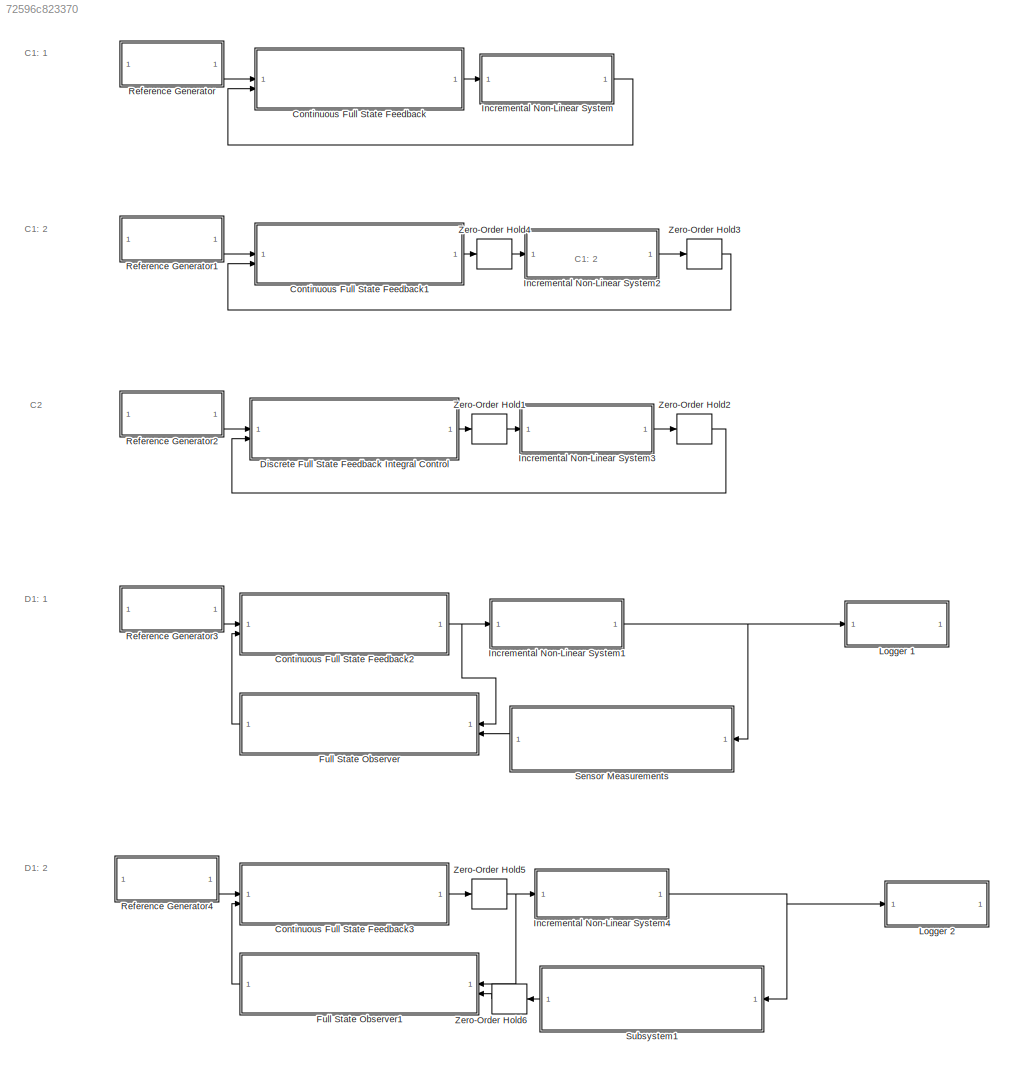
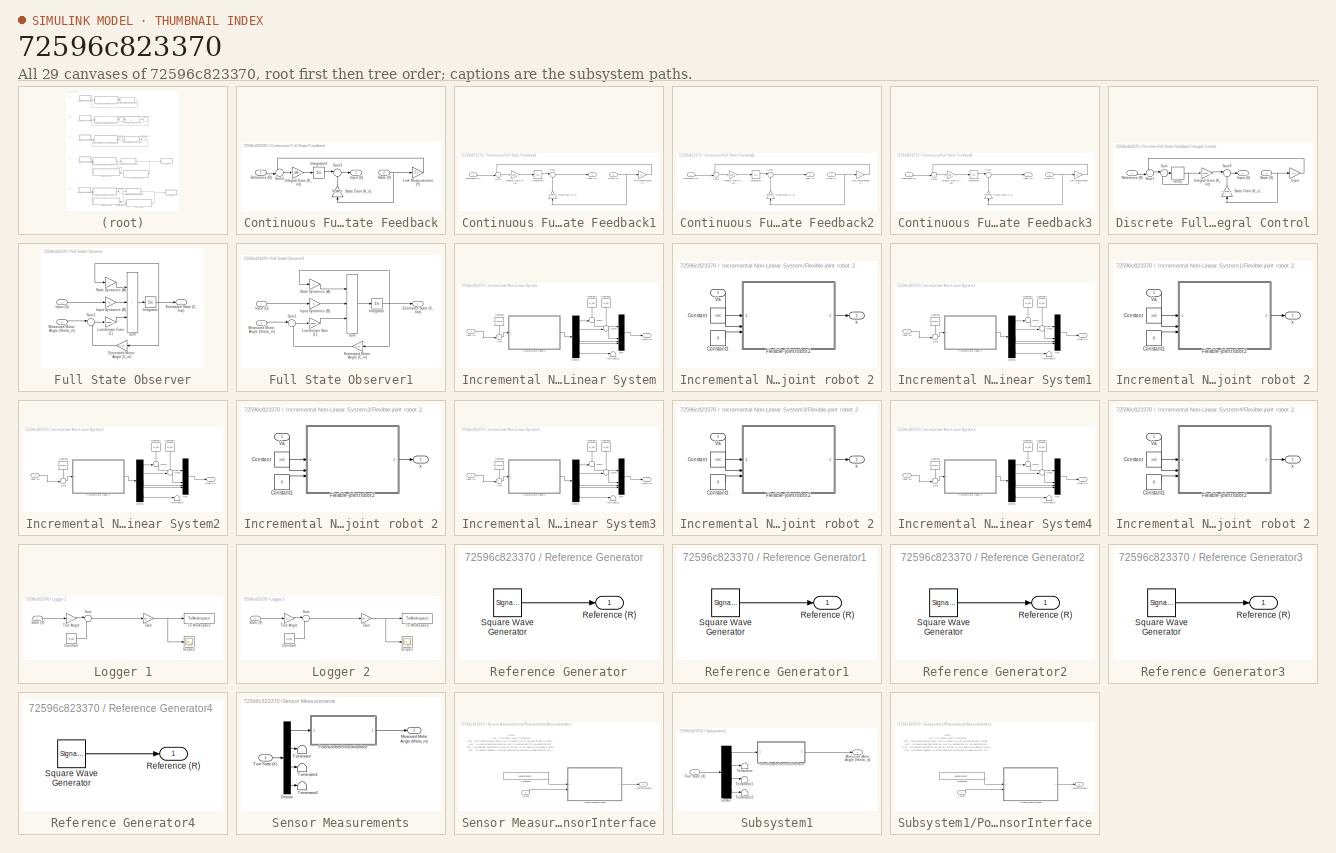
[diagram: thumbnail index - all 29 canvases of the model, root first then tree order]
MODEL slx_72596c823370
KIND model
CONFIG AbsTol = auto
CONFIG EnableMultiTasking = off
CONFIG FixedStep = auto
CONFIG MaxStep = auto
CONFIG MinStep = auto
CONFIG RelTol = 1e-3
CONFIG SampleTimeConstraint = Unconstrained
CONFIG SolverName = VariableStepAuto
CONFIG StartTime = 0.0
CONFIG StopTime = 21
BLOCK [SubSystem] Continuous Full State Feedback
BLOCK [Outport] Continuous Full State Feedback/Input (U)
BLOCK [Gain] Continuous Full State Feedback/Integral Gain (K_int)
  Gain = K_cont_int
BLOCK [Integrator] Continuous Full State Feedback/Integrator3
BLOCK [Gain] Continuous Full State Feedback/Link Measurement (Y)
  Gain = C_l
  Multiplication = Matrix(K*u)
BLOCK [Inport] Continuous Full State Feedback/Reference (R)
BLOCK [Inport] Continuous Full State Feedback/State (X)
  Port = 2
BLOCK [Gain] Continuous Full State Feedback/State Gain (K_x)
  Gain = K_cont_x
  Multiplication = Matrix(K*u)
  NameLocation = right
BLOCK [Sum] Continuous Full State Feedback/Sum2
  Inputs = -+|
BLOCK [Sum] Continuous Full State Feedback/Sum3
  Inputs = |+-
BLOCK [SubSystem] Continuous Full State Feedback1
BLOCK [Outport] Continuous Full State Feedback1/Input (U)
BLOCK [Gain] Continuous Full State Feedback1/Integral Gain (K_int)
  Gain = K_cont_int
BLOCK [Integrator] Continuous Full State Feedback1/Integrator3
BLOCK [Gain] Continuous Full State Feedback1/Link Measurement (Y)
  Gain = C_l
  Multiplication = Matrix(K*u)
BLOCK [Inport] Continuous Full State Feedback1/Reference (R)
BLOCK [Inport] Continuous Full State Feedback1/State (X)
  Port = 2
BLOCK [Gain] Continuous Full State Feedback1/State Gain (K_x)
  Gain = K_cont_x
  Multiplication = Matrix(K*u)
  NameLocation = right
BLOCK [Sum] Continuous Full State Feedback1/Sum2
  Inputs = -+|
BLOCK [Sum] Continuous Full State Feedback1/Sum3
  Inputs = |+-
BLOCK [SubSystem] Continuous Full State Feedback2
BLOCK [Outport] Continuous Full State Feedback2/Input (U)
BLOCK [Gain] Continuous Full State Feedback2/Integral Gain (K_int)
  Gain = K_cont_int
BLOCK [Integrator] Continuous Full State Feedback2/Integrator3
BLOCK [Gain] Continuous Full State Feedback2/Link Measurement (Y)
  Gain = C_l
  Multiplication = Matrix(K*u)
BLOCK [Inport] Continuous Full State Feedback2/Reference (R)
BLOCK [Inport] Continuous Full State Feedback2/State (X)
  Port = 2
BLOCK [Gain] Continuous Full State Feedback2/State Gain (K_x)
  Gain = K_cont_x
  Multiplication = Matrix(K*u)
  NameLocation = right
BLOCK [Sum] Continuous Full State Feedback2/Sum2
  Inputs = -+|
BLOCK [Sum] Continuous Full State Feedback2/Sum3
  Inputs = |+-
BLOCK [SubSystem] Continuous Full State Feedback3
BLOCK [Outport] Continuous Full State Feedback3/Input (U)
BLOCK [Gain] Continuous Full State Feedback3/Integral Gain (K_int)
  Gain = K_cont_int
BLOCK [Integrator] Continuous Full State Feedback3/Integrator3
BLOCK [Gain] Continuous Full State Feedback3/Link Measurement (Y)
  Gain = C_l
  Multiplication = Matrix(K*u)
BLOCK [Inport] Continuous Full State Feedback3/Reference (R)
BLOCK [Inport] Continuous Full State Feedback3/State (X)
  Port = 2
BLOCK [Gain] Continuous Full State Feedback3/State Gain (K_x)
  Gain = K_cont_x
  Multiplication = Matrix(K*u)
  NameLocation = right
BLOCK [Sum] Continuous Full State Feedback3/Sum2
  Inputs = -+|
BLOCK [Sum] Continuous Full State Feedback3/Sum3
  Inputs = |+-
BLOCK [SubSystem] Discrete Full State Feedback Integral Control
BLOCK [Delay] Discrete Full State Feedback Integral Control/Delay
  DelayLength = 1
  InputPortMap = u0
  SampleTime = min_sampling_time
BLOCK [Gain] Discrete Full State Feedback Integral Control/Gain
  Gain = C_l
  Multiplication = Matrix(K*u)
BLOCK [Outport] Discrete Full State Feedback Integral Control/Input (U)
BLOCK [Gain] Discrete Full State Feedback Integral Control/Integral Gain (K_int)
  Gain = K_disc_int
BLOCK [Inport] Discrete Full State Feedback Integral Control/Reference (R)
BLOCK [Inport] Discrete Full State Feedback Integral Control/State (X)
  Port = 2
BLOCK [Gain] Discrete Full State Feedback Integral Control/State Gain (K_x)
  Gain = K_disc_x
  Multiplication = Matrix(K*u)
  NameLocation = right
BLOCK [Sum] Discrete Full State Feedback Integral Control/Sum
  Inputs = |++
BLOCK [Sum] Discrete Full State Feedback Integral Control/Sum7
  Inputs = -+|
BLOCK [Sum] Discrete Full State Feedback Integral Control/Sum9
  Inputs = |+-
BLOCK [SubSystem] Full State Observer
  NameLocation = top
BLOCK [Gain] Full State Observer/Estimated Motor Angle (C_m)
  Gain = C_m
  Multiplication = Matrix(K*u)
  NameLocation = top
BLOCK [Outport] Full State Observer/Estimated State (X_hat)
BLOCK [Inport] Full State Observer/Input (U)
BLOCK [Gain] Full State Observer/Input Dynamics (B)
  Gain = B
  Multiplication = Matrix(K*u)
BLOCK [Integrator] Full State Observer/Integrator
BLOCK [Gain] Full State Observer/Luenberger Gain (L)
  Gain = J_observer
  Multiplication = Matrix(K*u)
BLOCK [Inport] Full State Observer/Measured Motor Angle (\theta_m)
  Port = 2
BLOCK [Gain] Full State Observer/State Dynamics (A)
  Gain = A
  Multiplication = Matrix(K*u)
BLOCK [Sum] Full State Observer/Sum
  IconShape = rectangular
  Inputs = +++
BLOCK [Sum] Full State Observer/Sum1
  Inputs = |+-
BLOCK [SubSystem] Full State Observer1
  NameLocation = top
BLOCK [Gain] Full State Observer1/Estimated Motor Angle (C_m)
  Gain = C_m
  Multiplication = Matrix(K*u)
  NameLocation = top
BLOCK [Outport] Full State Observer1/Estimated State (X_hat)
BLOCK [Inport] Full State Observer1/Input (U)
BLOCK [Gain] Full State Observer1/Input Dynamics (B)
  Gain = B
  Multiplication = Matrix(K*u)
BLOCK [Integrator] Full State Observer1/Integrator
BLOCK [Gain] Full State Observer1/Luenberger Gain (L)
  Gain = J_observer
  Multiplication = Matrix(K*u)
BLOCK [Inport] Full State Observer1/Measured Motor Angle (\theta_m)
  Port = 2
BLOCK [Gain] Full State Observer1/State Dynamics (A)
  Gain = A
  Multiplication = Matrix(K*u)
BLOCK [Sum] Full State Observer1/Sum
  IconShape = rectangular
  Inputs = +++
BLOCK [Sum] Full State Observer1/Sum1
  Inputs = |+-
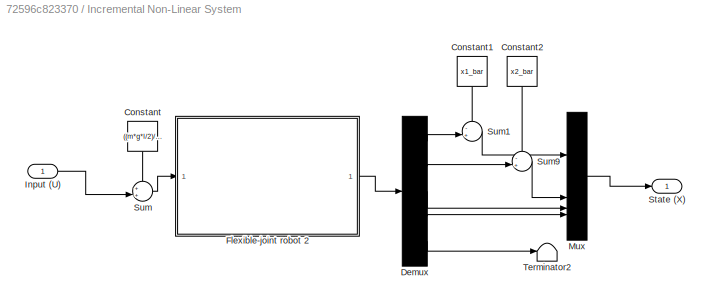
BLOCK [SubSystem] Incremental Non-Linear System
BLOCK [Constant] Incremental Non-Linear System/Constant
  NameLocation = left
  Value = ((m*g*l/2)/K_m + I_noload)*R
BLOCK [Constant] Incremental Non-Linear System/Constant1
  NameLocation = left
  Value = x1_bar
BLOCK [Constant] Incremental Non-Linear System/Constant2
  NameLocation = left
  Value = x2_bar
BLOCK [Demux] Incremental Non-Linear System/Demux
  Outputs = 5
BLOCK [SubSystem] Incremental Non-Linear System/Flexible-joint robot 2
BLOCK [Constant] Incremental Non-Linear System/Flexible-joint robot 2/Constant
  Value = init
BLOCK [Constant] Incremental Non-Linear System/Flexible-joint robot 2/Constant1
  Value = 0
BLOCK [ModelReference] Incremental Non-Linear System/Flexible-joint robot 2/Flexible-joint robot 2
  CopyOfModelProtected = on
  ModelNameDialog = Flexible_joint_robot_2
  ModelReferenceVersion = 1.65
BLOCK [Inport] Incremental Non-Linear System/Flexible-joint robot 2/Va
BLOCK [Outport] Incremental Non-Linear System/Flexible-joint robot 2/x
BLOCK [Inport] Incremental Non-Linear System/Input (U)
BLOCK [Mux] Incremental Non-Linear System/Mux
  DisplayOption = bar
BLOCK [Outport] Incremental Non-Linear System/State (X)
BLOCK [Sum] Incremental Non-Linear System/Sum
  Inputs = ++|
BLOCK [Sum] Incremental Non-Linear System/Sum1
  Inputs = -+|
BLOCK [Sum] Incremental Non-Linear System/Sum9
  Inputs = -+|
BLOCK [Terminator] Incremental Non-Linear System/Terminator2
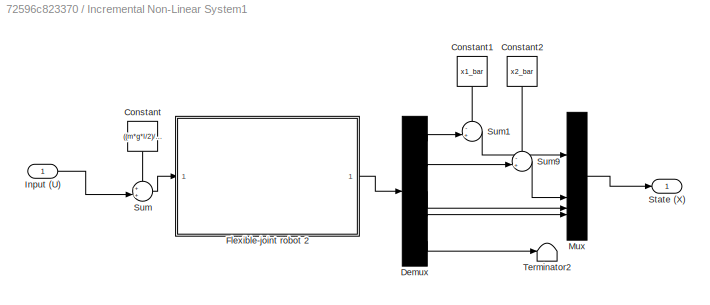
BLOCK [SubSystem] Incremental Non-Linear System1
BLOCK [Constant] Incremental Non-Linear System1/Constant
  NameLocation = left
  Value = ((m*g*l/2)/K_m + I_noload)*R
BLOCK [Constant] Incremental Non-Linear System1/Constant1
  NameLocation = left
  Value = x1_bar
BLOCK [Constant] Incremental Non-Linear System1/Constant2
  NameLocation = left
  Value = x2_bar
BLOCK [Demux] Incremental Non-Linear System1/Demux
  Outputs = 5
BLOCK [SubSystem] Incremental Non-Linear System1/Flexible-joint robot 2
BLOCK [Constant] Incremental Non-Linear System1/Flexible-joint robot 2/Constant
  Value = init
BLOCK [Constant] Incremental Non-Linear System1/Flexible-joint robot 2/Constant1
  Value = 0
BLOCK [ModelReference] Incremental Non-Linear System1/Flexible-joint robot 2/Flexible-joint robot 2
  CopyOfModelProtected = on
  ModelNameDialog = Flexible_joint_robot_2
  ModelReferenceVersion = 1.65
BLOCK [Inport] Incremental Non-Linear System1/Flexible-joint robot 2/Va
BLOCK [Outport] Incremental Non-Linear System1/Flexible-joint robot 2/x
BLOCK [Inport] Incremental Non-Linear System1/Input (U)
BLOCK [Mux] Incremental Non-Linear System1/Mux
  DisplayOption = bar
BLOCK [Outport] Incremental Non-Linear System1/State (X)
BLOCK [Sum] Incremental Non-Linear System1/Sum
  Inputs = ++|
BLOCK [Sum] Incremental Non-Linear System1/Sum1
  Inputs = -+|
BLOCK [Sum] Incremental Non-Linear System1/Sum9
  Inputs = -+|
BLOCK [Terminator] Incremental Non-Linear System1/Terminator2
BLOCK [SubSystem] Incremental Non-Linear System2
BLOCK [Constant] Incremental Non-Linear System2/Constant
  NameLocation = left
  Value = ((m*g*l/2)/K_m + I_noload)*R
BLOCK [Constant] Incremental Non-Linear System2/Constant1
  NameLocation = left
  Value = x1_bar
BLOCK [Constant] Incremental Non-Linear System2/Constant2
  NameLocation = left
  Value = x2_bar
BLOCK [Demux] Incremental Non-Linear System2/Demux
  Outputs = 5
BLOCK [SubSystem] Incremental Non-Linear System2/Flexible-joint robot 2
BLOCK [Constant] Incremental Non-Linear System2/Flexible-joint robot 2/Constant
  Value = init
BLOCK [Constant] Incremental Non-Linear System2/Flexible-joint robot 2/Constant1
  Value = 0
BLOCK [ModelReference] Incremental Non-Linear System2/Flexible-joint robot 2/Flexible-joint robot 2
  CopyOfModelProtected = on
  ModelNameDialog = Flexible_joint_robot_2
  ModelReferenceVersion = 1.65
BLOCK [Inport] Incremental Non-Linear System2/Flexible-joint robot 2/Va
BLOCK [Outport] Incremental Non-Linear System2/Flexible-joint robot 2/x
BLOCK [Inport] Incremental Non-Linear System2/Input (U)
BLOCK [Mux] Incremental Non-Linear System2/Mux
  DisplayOption = bar
BLOCK [Outport] Incremental Non-Linear System2/State (X)
BLOCK [Sum] Incremental Non-Linear System2/Sum
  Inputs = ++|
BLOCK [Sum] Incremental Non-Linear System2/Sum1
  Inputs = -+|
BLOCK [Sum] Incremental Non-Linear System2/Sum9
  Inputs = -+|
BLOCK [Terminator] Incremental Non-Linear System2/Terminator2
BLOCK [SubSystem] Incremental Non-Linear System3
BLOCK [Constant] Incremental Non-Linear System3/Constant
  NameLocation = left
  Value = ((m*g*l/2)/K_m + I_noload)*R
BLOCK [Constant] Incremental Non-Linear System3/Constant1
  NameLocation = left
  Value = x1_bar
BLOCK [Constant] Incremental Non-Linear System3/Constant2
  NameLocation = left
  Value = x2_bar
BLOCK [Demux] Incremental Non-Linear System3/Demux
  Outputs = 5
BLOCK [SubSystem] Incremental Non-Linear System3/Flexible-joint robot 2
BLOCK [Constant] Incremental Non-Linear System3/Flexible-joint robot 2/Constant
  Value = init
BLOCK [Constant] Incremental Non-Linear System3/Flexible-joint robot 2/Constant1
  Value = 0
BLOCK [ModelReference] Incremental Non-Linear System3/Flexible-joint robot 2/Flexible-joint robot 2
  CopyOfModelProtected = on
  ModelNameDialog = Flexible_joint_robot_2
  ModelReferenceVersion = 1.65
BLOCK [Inport] Incremental Non-Linear System3/Flexible-joint robot 2/Va
BLOCK [Outport] Incremental Non-Linear System3/Flexible-joint robot 2/x
BLOCK [Inport] Incremental Non-Linear System3/Input (U)
BLOCK [Mux] Incremental Non-Linear System3/Mux
  DisplayOption = bar
BLOCK [Outport] Incremental Non-Linear System3/State (X)
BLOCK [Sum] Incremental Non-Linear System3/Sum
  Inputs = ++|
BLOCK [Sum] Incremental Non-Linear System3/Sum1
  Inputs = -+|
BLOCK [Sum] Incremental Non-Linear System3/Sum9
  Inputs = -+|
BLOCK [Terminator] Incremental Non-Linear System3/Terminator2
BLOCK [SubSystem] Incremental Non-Linear System4
BLOCK [Constant] Incremental Non-Linear System4/Constant
  NameLocation = left
  Value = ((m*g*l/2)/K_m + I_noload)*R
BLOCK [Constant] Incremental Non-Linear System4/Constant1
  NameLocation = left
  Value = x1_bar
BLOCK [Constant] Incremental Non-Linear System4/Constant2
  NameLocation = left
  Value = x2_bar
BLOCK [Demux] Incremental Non-Linear System4/Demux
  Outputs = 5
BLOCK [SubSystem] Incremental Non-Linear System4/Flexible-joint robot 2
BLOCK [Constant] Incremental Non-Linear System4/Flexible-joint robot 2/Constant
  Value = init
BLOCK [Constant] Incremental Non-Linear System4/Flexible-joint robot 2/Constant1
  Value = 0
BLOCK [ModelReference] Incremental Non-Linear System4/Flexible-joint robot 2/Flexible-joint robot 2
  CopyOfModelProtected = on
  ModelNameDialog = Flexible_joint_robot_2
  ModelReferenceVersion = 1.65
BLOCK [Inport] Incremental Non-Linear System4/Flexible-joint robot 2/Va
BLOCK [Outport] Incremental Non-Linear System4/Flexible-joint robot 2/x
BLOCK [Inport] Incremental Non-Linear System4/Input (U)
BLOCK [Mux] Incremental Non-Linear System4/Mux
  DisplayOption = bar
BLOCK [Outport] Incremental Non-Linear System4/State (X)
BLOCK [Sum] Incremental Non-Linear System4/Sum
  Inputs = ++|
BLOCK [Sum] Incremental Non-Linear System4/Sum1
  Inputs = -+|
BLOCK [Sum] Incremental Non-Linear System4/Sum9
  Inputs = -+|
BLOCK [Terminator] Incremental Non-Linear System4/Terminator2
BLOCK [SubSystem] Logger 1
BLOCK [Constant] Logger 1/Constant
  Value = x2_bar
BLOCK [Gain] Logger 1/Gain
  Gain = 180 / pi
BLOCK [Scope] Logger 1/Scope2
  Floating = off
  NumInputPorts = 1
  ScopeSpecificationString = Simulink.scopes.TimeScopeBlockCfg('CurrentConfiguration', extmgr.ConfigurationSet(extmgr.Configuration('Core','General UI',true),extmgr.Configuration('Core','Source UI',true),extmgr.Configuration('Sources','WiredSimulink',true,'DataLoggingVariableName','ScopeData5'),extmgr.Configuration('Visuals','Time Domain',true,'SerializedDisplays',{struct('MinYLimReal','4.07075','MaxYLimReal','56.47558','YLab...<+1691ch>
BLOCK [Inport] Logger 1/State (X)
BLOCK [Sum] Logger 1/Sum
  Inputs = |++
BLOCK [ToWorkspace] Logger 1/To Workspace
  FixptAsFi = on
  MaxDataPoints = inf
  SampleTime = -1
  SaveFormat = Timeseries
  VariableName = link_angle
BLOCK [Gain] Logger 1/True Angle
  Gain = C_l
  Multiplication = Matrix(K*u)
BLOCK [SubSystem] Logger 2
BLOCK [Constant] Logger 2/Constant
  Value = x2_bar
BLOCK [Gain] Logger 2/Gain
  Gain = 180 / pi
BLOCK [Scope] Logger 2/Scope2
  Floating = off
  NumInputPorts = 1
  ScopeSpecificationString = Simulink.scopes.TimeScopeBlockCfg('CurrentConfiguration', extmgr.ConfigurationSet(extmgr.Configuration('Core','General UI',true),extmgr.Configuration('Core','Source UI',true),extmgr.Configuration('Sources','WiredSimulink',true,'DataLoggingVariableName','ScopeData5'),extmgr.Configuration('Visuals','Time Domain',true,'SerializedDisplays',{struct('MinYLimReal','4.07075','MaxYLimReal','56.47558','YLab...<+1691ch>
BLOCK [Inport] Logger 2/State (X)
BLOCK [Sum] Logger 2/Sum
  Inputs = |++
BLOCK [ToWorkspace] Logger 2/To Workspace
  FixptAsFi = on
  MaxDataPoints = inf
  SampleTime = -1
  SaveFormat = Timeseries
  VariableName = link_angle_2
BLOCK [Gain] Logger 2/True Angle
  Gain = C_l
  Multiplication = Matrix(K*u)
BLOCK [SubSystem] Reference Generator
BLOCK [Outport] Reference Generator/Reference (R)
BLOCK [SignalGenerator] Reference Generator/Square Wave Generator
  Amplitude = wave_amplitude
  Frequency = 1 / wave_period
  WaveForm = square
BLOCK [SubSystem] Reference Generator1
BLOCK [Outport] Reference Generator1/Reference (R)
BLOCK [SignalGenerator] Reference Generator1/Square Wave Generator
  Amplitude = wave_amplitude
  Frequency = 1 / wave_period
  WaveForm = square
BLOCK [SubSystem] Reference Generator2
BLOCK [Outport] Reference Generator2/Reference (R)
BLOCK [SignalGenerator] Reference Generator2/Square Wave Generator
  Amplitude = wave_amplitude
  Frequency = 1 / wave_period
  WaveForm = square
BLOCK [SubSystem] Reference Generator3
BLOCK [Outport] Reference Generator3/Reference (R)
BLOCK [SignalGenerator] Reference Generator3/Square Wave Generator
  Amplitude = wave_amplitude
  Frequency = 1 / wave_period
  WaveForm = square
BLOCK [SubSystem] Reference Generator4
BLOCK [Outport] Reference Generator4/Reference (R)
BLOCK [SignalGenerator] Reference Generator4/Square Wave Generator
  Amplitude = wave_amplitude
  Frequency = 1 / wave_period
  WaveForm = square
BLOCK [SubSystem] Sensor Measurements
  NameLocation = top
BLOCK [Demux] Sensor Measurements/Demux
BLOCK [Outport] Sensor Measurements/Measured Motor Angle (\theta_m)
BLOCK [SubSystem] Sensor Measurements/PotentiometerSensorInterface
  TreatAsAtomicUnit = on
BLOCK [Constant] Sensor Measurements/PotentiometerSensorInterface/Constant3
  Value = potentiometer_linearity_percent
BLOCK [ModelReference] Sensor Measurements/PotentiometerSensorInterface/PotentiometerSensor
  CopyOfModelProtected = on
  ModelNameDialog = PotentiometerSensor.slxp
  ModelReferenceVersion = 1.21
BLOCK [Inport] Sensor Measurements/PotentiometerSensorInterface/y_plant
BLOCK [Outport] Sensor Measurements/PotentiometerSensorInterface/y_potentiometer
BLOCK [Terminator] Sensor Measurements/Terminator
BLOCK [Terminator] Sensor Measurements/Terminator1
BLOCK [Terminator] Sensor Measurements/Terminator2
BLOCK [Inport] Sensor Measurements/True State (X)
BLOCK [SubSystem] Subsystem1
  NameLocation = top
BLOCK [Demux] Subsystem1/Demux
BLOCK [Outport] Subsystem1/Measured Motor Angle (\theta_m)
BLOCK [SubSystem] Subsystem1/PotentiometerSensorInterface
  TreatAsAtomicUnit = on
BLOCK [Constant] Subsystem1/PotentiometerSensorInterface/Constant3
  Value = potentiometer_linearity_percent
BLOCK [ModelReference] Subsystem1/PotentiometerSensorInterface/PotentiometerSensor
  CopyOfModelProtected = on
  ModelNameDialog = PotentiometerSensor.slxp
  ModelReferenceVersion = 1.21
BLOCK [Inport] Subsystem1/PotentiometerSensorInterface/y_plant
BLOCK [Outport] Subsystem1/PotentiometerSensorInterface/y_potentiometer
BLOCK [Terminator] Subsystem1/Terminator
BLOCK [Terminator] Subsystem1/Terminator1
BLOCK [Terminator] Subsystem1/Terminator2
BLOCK [Inport] Subsystem1/True State (X)
BLOCK [ZeroOrderHold] Zero-Order Hold1
  SampleTime = min_sampling_time
BLOCK [ZeroOrderHold] Zero-Order Hold2
  SampleTime = min_sampling_time
BLOCK [ZeroOrderHold] Zero-Order Hold3
  SampleTime = min_sampling_time
BLOCK [ZeroOrderHold] Zero-Order Hold4
  SampleTime = min_sampling_time
BLOCK [ZeroOrderHold] Zero-Order Hold5
  SampleTime = min_sampling_time
BLOCK [ZeroOrderHold] Zero-Order Hold6
  NameLocation = top
  SampleTime = min_sampling_time
ANNOTATION (root): C1: 1
ANNOTATION (root): C1: 2
ANNOTATION (root): C2
ANNOTATION (root): D1: 1
ANNOTATION (root): D1: 2
ANNOTATION Sensor Measurements/PotentiometerSensorInterface: Notes: > This sensor block is protected. > The PotentiometerSensor.slxp file needs to be on the Matlab path in order to simulate this sensor. > You should have download the .slpx file appropriate for you operating system {Windows, Mac, Linux}. > The constant parameters on the left are set in the " ELEN90064_Project_Parameters.m " script. > The sensors appendix in project description provides a 1-p...<+188ch>
ANNOTATION Subsystem1/PotentiometerSensorInterface: Notes: > This sensor block is protected. > The PotentiometerSensor.slxp file needs to be on the Matlab path in order to simulate this sensor. > You should have download the .slpx file appropriate for you operating system {Windows, Mac, Linux}. > The constant parameters on the left are set in the " ELEN90064_Project_Parameters.m " script. > The sensors appendix in project description provides a 1-p...<+188ch>
LINE Continuous Full State Feedback/Integral Gain (K_int):1 -> Continuous Full State Feedback/Integrator3:1
LINE Continuous Full State Feedback/Integrator3:1 -> Continuous Full State Feedback/Sum3:1
LINE Continuous Full State Feedback/Link Measurement (Y):1 -> Continuous Full State Feedback/Sum2:1
LINE Continuous Full State Feedback/Reference (R):1 -> Continuous Full State Feedback/Sum2:2
NET Continuous Full State Feedback/State (X):1 -> Continuous Full State Feedback/Link Measurement (Y):1, Continuous Full State Feedback/State Gain (K_x):1
LINE Continuous Full State Feedback/State Gain (K_x):1 -> Continuous Full State Feedback/Sum3:2
LINE Continuous Full State Feedback/Sum2:1 -> Continuous Full State Feedback/Integral Gain (K_int):1
LINE Continuous Full State Feedback/Sum3:1 -> Continuous Full State Feedback/Input (U):1
LINE Continuous Full State Feedback1/Integral Gain (K_int):1 -> Continuous Full State Feedback1/Integrator3:1
LINE Continuous Full State Feedback1/Integrator3:1 -> Continuous Full State Feedback1/Sum3:1
LINE Continuous Full State Feedback1/Link Measurement (Y):1 -> Continuous Full State Feedback1/Sum2:1
LINE Continuous Full State Feedback1/Reference (R):1 -> Continuous Full State Feedback1/Sum2:2
NET Continuous Full State Feedback1/State (X):1 -> Continuous Full State Feedback1/Link Measurement (Y):1, Continuous Full State Feedback1/State Gain (K_x):1
LINE Continuous Full State Feedback1/State Gain (K_x):1 -> Continuous Full State Feedback1/Sum3:2
LINE Continuous Full State Feedback1/Sum2:1 -> Continuous Full State Feedback1/Integral Gain (K_int):1
LINE Continuous Full State Feedback1/Sum3:1 -> Continuous Full State Feedback1/Input (U):1
LINE Continuous Full State Feedback1:1 -> Zero-Order Hold4:1
LINE Continuous Full State Feedback2/Integral Gain (K_int):1 -> Continuous Full State Feedback2/Integrator3:1
LINE Continuous Full State Feedback2/Integrator3:1 -> Continuous Full State Feedback2/Sum3:1
LINE Continuous Full State Feedback2/Link Measurement (Y):1 -> Continuous Full State Feedback2/Sum2:1
LINE Continuous Full State Feedback2/Reference (R):1 -> Continuous Full State Feedback2/Sum2:2
NET Continuous Full State Feedback2/State (X):1 -> Continuous Full State Feedback2/Link Measurement (Y):1, Continuous Full State Feedback2/State Gain (K_x):1
LINE Continuous Full State Feedback2/State Gain (K_x):1 -> Continuous Full State Feedback2/Sum3:2
LINE Continuous Full State Feedback2/Sum2:1 -> Continuous Full State Feedback2/Integral Gain (K_int):1
LINE Continuous Full State Feedback2/Sum3:1 -> Continuous Full State Feedback2/Input (U):1
NET Continuous Full State Feedback2:1 -> Full State Observer:1, Incremental Non-Linear System1:1
LINE Continuous Full State Feedback3/Integral Gain (K_int):1 -> Continuous Full State Feedback3/Integrator3:1
LINE Continuous Full State Feedback3/Integrator3:1 -> Continuous Full State Feedback3/Sum3:1
LINE Continuous Full State Feedback3/Link Measurement (Y):1 -> Continuous Full State Feedback3/Sum2:1
LINE Continuous Full State Feedback3/Reference (R):1 -> Continuous Full State Feedback3/Sum2:2
NET Continuous Full State Feedback3/State (X):1 -> Continuous Full State Feedback3/Link Measurement (Y):1, Continuous Full State Feedback3/State Gain (K_x):1
LINE Continuous Full State Feedback3/State Gain (K_x):1 -> Continuous Full State Feedback3/Sum3:2
LINE Continuous Full State Feedback3/Sum2:1 -> Continuous Full State Feedback3/Integral Gain (K_int):1
LINE Continuous Full State Feedback3/Sum3:1 -> Continuous Full State Feedback3/Input (U):1
LINE Continuous Full State Feedback3:1 -> Zero-Order Hold5:1
LINE Continuous Full State Feedback:1 -> Incremental Non-Linear System:1
NET Discrete Full State Feedback Integral Control/Delay:1 -> Discrete Full State Feedback Integral Control/Integral Gain (K_int):1, Discrete Full State Feedback Integral Control/Sum:2
LINE Discrete Full State Feedback Integral Control/Gain:1 -> Discrete Full State Feedback Integral Control/Sum7:1
LINE Discrete Full State Feedback Integral Control/Integral Gain (K_int):1 -> Discrete Full State Feedback Integral Control/Sum9:1
LINE Discrete Full State Feedback Integral Control/Reference (R):1 -> Discrete Full State Feedback Integral Control/Sum7:2
NET Discrete Full State Feedback Integral Control/State (X):1 -> Discrete Full State Feedback Integral Control/Gain:1, Discrete Full State Feedback Integral Control/State Gain (K_x):1
LINE Discrete Full State Feedback Integral Control/State Gain (K_x):1 -> Discrete Full State Feedback Integral Control/Sum9:2
LINE Discrete Full State Feedback Integral Control/Sum7:1 -> Discrete Full State Feedback Integral Control/Sum:1
LINE Discrete Full State Feedback Integral Control/Sum9:1 -> Discrete Full State Feedback Integral Control/Input (U):1
LINE Discrete Full State Feedback Integral Control/Sum:1 -> Discrete Full State Feedback Integral Control/Delay:1
LINE Discrete Full State Feedback Integral Control:1 -> Zero-Order Hold1:1
LINE Full State Observer/Estimated Motor Angle (C_m):1 -> Full State Observer/Sum1:2
LINE Full State Observer/Input (U):1 -> Full State Observer/Input Dynamics (B):1
LINE Full State Observer/Input Dynamics (B):1 -> Full State Observer/Sum:2
NET Full State Observer/Integrator:1 -> Full State Observer/Estimated Motor Angle (C_m):1, Full State Observer/Estimated State (X_hat):1, Full State Observer/State Dynamics (A):1
LINE Full State Observer/Luenberger Gain (L):1 -> Full State Observer/Sum:3
LINE Full State Observer/Measured Motor Angle (\theta_m):1 -> Full State Observer/Sum1:1
LINE Full State Observer/State Dynamics (A):1 -> Full State Observer/Sum:1
LINE Full State Observer/Sum1:1 -> Full State Observer/Luenberger Gain (L):1
LINE Full State Observer/Sum:1 -> Full State Observer/Integrator:1
LINE Full State Observer1/Estimated Motor Angle (C_m):1 -> Full State Observer1/Sum1:2
LINE Full State Observer1/Input (U):1 -> Full State Observer1/Input Dynamics (B):1
LINE Full State Observer1/Input Dynamics (B):1 -> Full State Observer1/Sum:2
NET Full State Observer1/Integrator:1 -> Full State Observer1/Estimated Motor Angle (C_m):1, Full State Observer1/Estimated State (X_hat):1, Full State Observer1/State Dynamics (A):1
LINE Full State Observer1/Luenberger Gain (L):1 -> Full State Observer1/Sum:3
LINE Full State Observer1/Measured Motor Angle (\theta_m):1 -> Full State Observer1/Sum1:1
LINE Full State Observer1/State Dynamics (A):1 -> Full State Observer1/Sum:1
LINE Full State Observer1/Sum1:1 -> Full State Observer1/Luenberger Gain (L):1
LINE Full State Observer1/Sum:1 -> Full State Observer1/Integrator:1
LINE Full State Observer1:1 -> Continuous Full State Feedback3:2
LINE Full State Observer:1 -> Continuous Full State Feedback2:2
LINE Incremental Non-Linear System/Constant1:1 -> Incremental Non-Linear System/Sum1:1
LINE Incremental Non-Linear System/Constant2:1 -> Incremental Non-Linear System/Sum9:1
LINE Incremental Non-Linear System/Constant:1 -> Incremental Non-Linear System/Sum:1
LINE Incremental Non-Linear System/Demux:1 -> Incremental Non-Linear System/Sum1:2
LINE Incremental Non-Linear System/Demux:2 -> Incremental Non-Linear System/Sum9:2
LINE Incremental Non-Linear System/Demux:3 -> Incremental Non-Linear System/Mux:3
LINE Incremental Non-Linear System/Demux:4 -> Incremental Non-Linear System/Mux:4
LINE Incremental Non-Linear System/Demux:5 -> Incremental Non-Linear System/Terminator2:1
LINE Incremental Non-Linear System/Flexible-joint robot 2/Constant1:1 -> Incremental Non-Linear System/Flexible-joint robot 2/Flexible-joint robot 2:3
LINE Incremental Non-Linear System/Flexible-joint robot 2/Constant:1 -> Incremental Non-Linear System/Flexible-joint robot 2/Flexible-joint robot 2:2
LINE Incremental Non-Linear System/Flexible-joint robot 2/Flexible-joint robot 2:1 -> Incremental Non-Linear System/Flexible-joint robot 2/x:1
LINE Incremental Non-Linear System/Flexible-joint robot 2/Va:1 -> Incremental Non-Linear System/Flexible-joint robot 2/Flexible-joint robot 2:1
LINE Incremental Non-Linear System/Flexible-joint robot 2:1 -> Incremental Non-Linear System/Demux:1
LINE Incremental Non-Linear System/Input (U):1 -> Incremental Non-Linear System/Sum:2
LINE Incremental Non-Linear System/Mux:1 -> Incremental Non-Linear System/State (X):1
LINE Incremental Non-Linear System/Sum1:1 -> Incremental Non-Linear System/Mux:1
LINE Incremental Non-Linear System/Sum9:1 -> Incremental Non-Linear System/Mux:2
LINE Incremental Non-Linear System/Sum:1 -> Incremental Non-Linear System/Flexible-joint robot 2:1
LINE Incremental Non-Linear System1/Constant1:1 -> Incremental Non-Linear System1/Sum1:1
LINE Incremental Non-Linear System1/Constant2:1 -> Incremental Non-Linear System1/Sum9:1
LINE Incremental Non-Linear System1/Constant:1 -> Incremental Non-Linear System1/Sum:1
LINE Incremental Non-Linear System1/Demux:1 -> Incremental Non-Linear System1/Sum1:2
LINE Incremental Non-Linear System1/Demux:2 -> Incremental Non-Linear System1/Sum9:2
LINE Incremental Non-Linear System1/Demux:3 -> Incremental Non-Linear System1/Mux:3
LINE Incremental Non-Linear System1/Demux:4 -> Incremental Non-Linear System1/Mux:4
LINE Incremental Non-Linear System1/Demux:5 -> Incremental Non-Linear System1/Terminator2:1
LINE Incremental Non-Linear System1/Flexible-joint robot 2/Constant1:1 -> Incremental Non-Linear System1/Flexible-joint robot 2/Flexible-joint robot 2:3
LINE Incremental Non-Linear System1/Flexible-joint robot 2/Constant:1 -> Incremental Non-Linear System1/Flexible-joint robot 2/Flexible-joint robot 2:2
LINE Incremental Non-Linear System1/Flexible-joint robot 2/Flexible-joint robot 2:1 -> Incremental Non-Linear System1/Flexible-joint robot 2/x:1
LINE Incremental Non-Linear System1/Flexible-joint robot 2/Va:1 -> Incremental Non-Linear System1/Flexible-joint robot 2/Flexible-joint robot 2:1
LINE Incremental Non-Linear System1/Flexible-joint robot 2:1 -> Incremental Non-Linear System1/Demux:1
LINE Incremental Non-Linear System1/Input (U):1 -> Incremental Non-Linear System1/Sum:2
LINE Incremental Non-Linear System1/Mux:1 -> Incremental Non-Linear System1/State (X):1
LINE Incremental Non-Linear System1/Sum1:1 -> Incremental Non-Linear System1/Mux:1
LINE Incremental Non-Linear System1/Sum9:1 -> Incremental Non-Linear System1/Mux:2
LINE Incremental Non-Linear System1/Sum:1 -> Incremental Non-Linear System1/Flexible-joint robot 2:1
NET Incremental Non-Linear System1:1 -> Logger 1:1, Sensor Measurements:1
LINE Incremental Non-Linear System2/Constant1:1 -> Incremental Non-Linear System2/Sum1:1
LINE Incremental Non-Linear System2/Constant2:1 -> Incremental Non-Linear System2/Sum9:1
LINE Incremental Non-Linear System2/Constant:1 -> Incremental Non-Linear System2/Sum:1
LINE Incremental Non-Linear System2/Demux:1 -> Incremental Non-Linear System2/Sum1:2
LINE Incremental Non-Linear System2/Demux:2 -> Incremental Non-Linear System2/Sum9:2
LINE Incremental Non-Linear System2/Demux:3 -> Incremental Non-Linear System2/Mux:3
LINE Incremental Non-Linear System2/Demux:4 -> Incremental Non-Linear System2/Mux:4
LINE Incremental Non-Linear System2/Demux:5 -> Incremental Non-Linear System2/Terminator2:1
LINE Incremental Non-Linear System2/Flexible-joint robot 2/Constant1:1 -> Incremental Non-Linear System2/Flexible-joint robot 2/Flexible-joint robot 2:3
LINE Incremental Non-Linear System2/Flexible-joint robot 2/Constant:1 -> Incremental Non-Linear System2/Flexible-joint robot 2/Flexible-joint robot 2:2
LINE Incremental Non-Linear System2/Flexible-joint robot 2/Flexible-joint robot 2:1 -> Incremental Non-Linear System2/Flexible-joint robot 2/x:1
LINE Incremental Non-Linear System2/Flexible-joint robot 2/Va:1 -> Incremental Non-Linear System2/Flexible-joint robot 2/Flexible-joint robot 2:1
LINE Incremental Non-Linear System2/Flexible-joint robot 2:1 -> Incremental Non-Linear System2/Demux:1
LINE Incremental Non-Linear System2/Input (U):1 -> Incremental Non-Linear System2/Sum:2
LINE Incremental Non-Linear System2/Mux:1 -> Incremental Non-Linear System2/State (X):1
LINE Incremental Non-Linear System2/Sum1:1 -> Incremental Non-Linear System2/Mux:1
LINE Incremental Non-Linear System2/Sum9:1 -> Incremental Non-Linear System2/Mux:2
LINE Incremental Non-Linear System2/Sum:1 -> Incremental Non-Linear System2/Flexible-joint robot 2:1
LINE Incremental Non-Linear System2:1 -> Zero-Order Hold3:1
LINE Incremental Non-Linear System3/Constant1:1 -> Incremental Non-Linear System3/Sum1:1
LINE Incremental Non-Linear System3/Constant2:1 -> Incremental Non-Linear System3/Sum9:1
LINE Incremental Non-Linear System3/Constant:1 -> Incremental Non-Linear System3/Sum:1
LINE Incremental Non-Linear System3/Demux:1 -> Incremental Non-Linear System3/Sum1:2
LINE Incremental Non-Linear System3/Demux:2 -> Incremental Non-Linear System3/Sum9:2
LINE Incremental Non-Linear System3/Demux:3 -> Incremental Non-Linear System3/Mux:3
LINE Incremental Non-Linear System3/Demux:4 -> Incremental Non-Linear System3/Mux:4
LINE Incremental Non-Linear System3/Demux:5 -> Incremental Non-Linear System3/Terminator2:1
LINE Incremental Non-Linear System3/Flexible-joint robot 2/Constant1:1 -> Incremental Non-Linear System3/Flexible-joint robot 2/Flexible-joint robot 2:3
LINE Incremental Non-Linear System3/Flexible-joint robot 2/Constant:1 -> Incremental Non-Linear System3/Flexible-joint robot 2/Flexible-joint robot 2:2
LINE Incremental Non-Linear System3/Flexible-joint robot 2/Flexible-joint robot 2:1 -> Incremental Non-Linear System3/Flexible-joint robot 2/x:1
LINE Incremental Non-Linear System3/Flexible-joint robot 2/Va:1 -> Incremental Non-Linear System3/Flexible-joint robot 2/Flexible-joint robot 2:1
LINE Incremental Non-Linear System3/Flexible-joint robot 2:1 -> Incremental Non-Linear System3/Demux:1
LINE Incremental Non-Linear System3/Input (U):1 -> Incremental Non-Linear System3/Sum:2
LINE Incremental Non-Linear System3/Mux:1 -> Incremental Non-Linear System3/State (X):1
LINE Incremental Non-Linear System3/Sum1:1 -> Incremental Non-Linear System3/Mux:1
LINE Incremental Non-Linear System3/Sum9:1 -> Incremental Non-Linear System3/Mux:2
LINE Incremental Non-Linear System3/Sum:1 -> Incremental Non-Linear System3/Flexible-joint robot 2:1
LINE Incremental Non-Linear System3:1 -> Zero-Order Hold2:1
LINE Incremental Non-Linear System4/Constant1:1 -> Incremental Non-Linear System4/Sum1:1
LINE Incremental Non-Linear System4/Constant2:1 -> Incremental Non-Linear System4/Sum9:1
LINE Incremental Non-Linear System4/Constant:1 -> Incremental Non-Linear System4/Sum:1
LINE Incremental Non-Linear System4/Demux:1 -> Incremental Non-Linear System4/Sum1:2
LINE Incremental Non-Linear System4/Demux:2 -> Incremental Non-Linear System4/Sum9:2
LINE Incremental Non-Linear System4/Demux:3 -> Incremental Non-Linear System4/Mux:3
LINE Incremental Non-Linear System4/Demux:4 -> Incremental Non-Linear System4/Mux:4
LINE Incremental Non-Linear System4/Demux:5 -> Incremental Non-Linear System4/Terminator2:1
LINE Incremental Non-Linear System4/Flexible-joint robot 2/Constant1:1 -> Incremental Non-Linear System4/Flexible-joint robot 2/Flexible-joint robot 2:3
LINE Incremental Non-Linear System4/Flexible-joint robot 2/Constant:1 -> Incremental Non-Linear System4/Flexible-joint robot 2/Flexible-joint robot 2:2
LINE Incremental Non-Linear System4/Flexible-joint robot 2/Flexible-joint robot 2:1 -> Incremental Non-Linear System4/Flexible-joint robot 2/x:1
LINE Incremental Non-Linear System4/Flexible-joint robot 2/Va:1 -> Incremental Non-Linear System4/Flexible-joint robot 2/Flexible-joint robot 2:1
LINE Incremental Non-Linear System4/Flexible-joint robot 2:1 -> Incremental Non-Linear System4/Demux:1
LINE Incremental Non-Linear System4/Input (U):1 -> Incremental Non-Linear System4/Sum:2
LINE Incremental Non-Linear System4/Mux:1 -> Incremental Non-Linear System4/State (X):1
LINE Incremental Non-Linear System4/Sum1:1 -> Incremental Non-Linear System4/Mux:1
LINE Incremental Non-Linear System4/Sum9:1 -> Incremental Non-Linear System4/Mux:2
LINE Incremental Non-Linear System4/Sum:1 -> Incremental Non-Linear System4/Flexible-joint robot 2:1
NET Incremental Non-Linear System4:1 -> Logger 2:1, Subsystem1:1
LINE Incremental Non-Linear System:1 -> Continuous Full State Feedback:2
LINE Logger 1/Constant:1 -> Logger 1/Sum:2
NET Logger 1/Gain:1 -> Logger 1/Scope2:1, Logger 1/To Workspace:1
LINE Logger 1/State (X):1 -> Logger 1/True Angle:1
LINE Logger 1/Sum:1 -> Logger 1/Gain:1
LINE Logger 1/True Angle:1 -> Logger 1/Sum:1
LINE Logger 2/Constant:1 -> Logger 2/Sum:2
NET Logger 2/Gain:1 -> Logger 2/Scope2:1, Logger 2/To Workspace:1
LINE Logger 2/State (X):1 -> Logger 2/True Angle:1
LINE Logger 2/Sum:1 -> Logger 2/Gain:1
LINE Logger 2/True Angle:1 -> Logger 2/Sum:1
LINE Reference Generator/Square Wave Generator:1 -> Reference Generator/Reference (R):1
LINE Reference Generator1/Square Wave Generator:1 -> Reference Generator1/Reference (R):1
LINE Reference Generator1:1 -> Continuous Full State Feedback1:1
LINE Reference Generator2/Square Wave Generator:1 -> Reference Generator2/Reference (R):1
LINE Reference Generator2:1 -> Discrete Full State Feedback Integral Control:1
LINE Reference Generator3/Square Wave Generator:1 -> Reference Generator3/Reference (R):1
LINE Reference Generator3:1 -> Continuous Full State Feedback2:1
LINE Reference Generator4/Square Wave Generator:1 -> Reference Generator4/Reference (R):1
LINE Reference Generator4:1 -> Continuous Full State Feedback3:1
LINE Reference Generator:1 -> Continuous Full State Feedback:1
LINE Sensor Measurements/Demux:1 -> Sensor Measurements/PotentiometerSensorInterface:1
LINE Sensor Measurements/Demux:2 -> Sensor Measurements/Terminator:1
LINE Sensor Measurements/Demux:3 -> Sensor Measurements/Terminator1:1
LINE Sensor Measurements/Demux:4 -> Sensor Measurements/Terminator2:1
LINE Sensor Measurements/PotentiometerSensorInterface/Constant3:1 -> Sensor Measurements/PotentiometerSensorInterface/PotentiometerSensor:1
LINE Sensor Measurements/PotentiometerSensorInterface/PotentiometerSensor:1 -> Sensor Measurements/PotentiometerSensorInterface/y_potentiometer:1
LINE Sensor Measurements/PotentiometerSensorInterface/y_plant:1 -> Sensor Measurements/PotentiometerSensorInterface/PotentiometerSensor:2
LINE Sensor Measurements/PotentiometerSensorInterface:1 -> Sensor Measurements/Measured Motor Angle (\theta_m):1
LINE Sensor Measurements/True State (X):1 -> Sensor Measurements/Demux:1
LINE Sensor Measurements:1 -> Full State Observer:2
LINE Subsystem1/Demux:1 -> Subsystem1/PotentiometerSensorInterface:1
LINE Subsystem1/Demux:2 -> Subsystem1/Terminator:1
LINE Subsystem1/Demux:3 -> Subsystem1/Terminator1:1
LINE Subsystem1/Demux:4 -> Subsystem1/Terminator2:1
LINE Subsystem1/PotentiometerSensorInterface/Constant3:1 -> Subsystem1/PotentiometerSensorInterface/PotentiometerSensor:1
LINE Subsystem1/PotentiometerSensorInterface/PotentiometerSensor:1 -> Subsystem1/PotentiometerSensorInterface/y_potentiometer:1
LINE Subsystem1/PotentiometerSensorInterface/y_plant:1 -> Subsystem1/PotentiometerSensorInterface/PotentiometerSensor:2
LINE Subsystem1/PotentiometerSensorInterface:1 -> Subsystem1/Measured Motor Angle (\theta_m):1
LINE Subsystem1/True State (X):1 -> Subsystem1/Demux:1
LINE Subsystem1:1 -> Zero-Order Hold6:1
LINE Zero-Order Hold1:1 -> Incremental Non-Linear System3:1
LINE Zero-Order Hold2:1 -> Discrete Full State Feedback Integral Control:2
LINE Zero-Order Hold3:1 -> Continuous Full State Feedback1:2
LINE Zero-Order Hold4:1 -> Incremental Non-Linear System2:1
NET Zero-Order Hold5:1 -> Full State Observer1:1, Incremental Non-Linear System4:1
LINE Zero-Order Hold6:1 -> Full State Observer1:2
note: NET lines group one-source signal fan-out (src -> all destinations, sorted); 1:1 wires keep LINE
